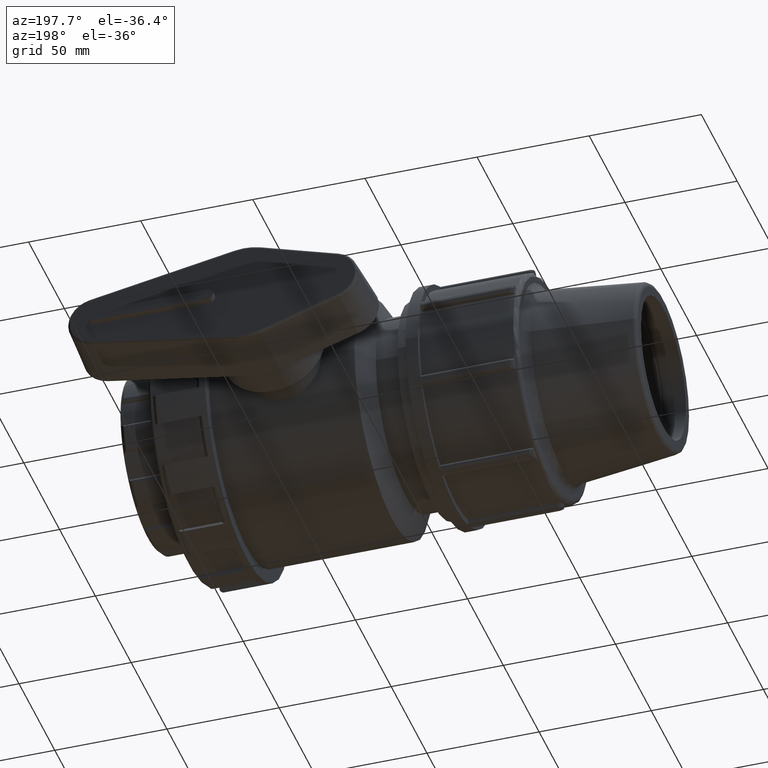
[diagram: clean part render]
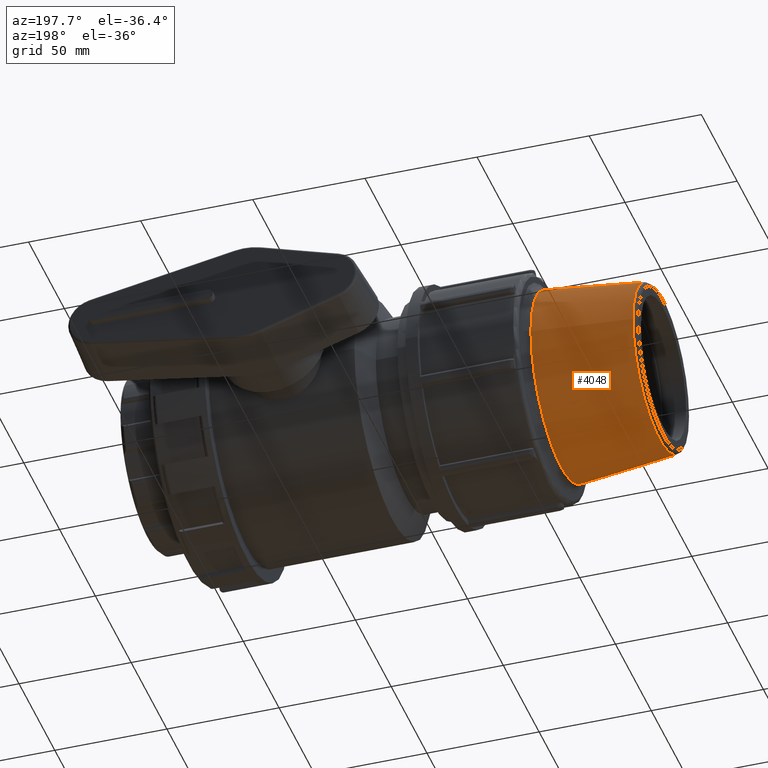
[diagram: same view with one face highlighted and labeled with its STEP entity id]
A machine part, auxiliary view. The second image highlights one B-rep face of the part: STEP entity #4048.
In plain terms, the highlighted conical surface has half-angle 6.179 deg.
Its self-contained STEP definition (entity closure, byte-faithful):
#15=CONICAL_SURFACE('',#4356,39.825,6.17860053188567);
#36=FACE_BOUND('',#679,.T.);
#428=FACE_OUTER_BOUND('',#678,.T.);
#678=EDGE_LOOP('',(#3009));
#679=EDGE_LOOP('',(#3010));
#1414=CIRCLE('',#4354,37.3525842148343);
#1416=CIRCLE('',#4357,42.1148315703314);
#1737=VERTEX_POINT('',#7091);
#1739=VERTEX_POINT('',#7096);
#2220=EDGE_CURVE('',#1737,#1737,#1414,.T.);
#2222=EDGE_CURVE('',#1739,#1739,#1416,.T.);
#3009=ORIENTED_EDGE('',*,*,#2222,.F.);
#3010=ORIENTED_EDGE('',*,*,#2220,.F.);
#4048=ADVANCED_FACE('',(#428,#36),#15,.T.);
#4354=AXIS2_PLACEMENT_3D('',#7092,#5045,#5046);
#4356=AXIS2_PLACEMENT_3D('',#7095,#5049,#5050);
#4357=AXIS2_PLACEMENT_3D('',#7097,#5051,#5052);
#5045=DIRECTION('center_axis',(-1.,0.,0.));
#5046=DIRECTION('ref_axis',(0.,-1.,-3.06161699786838E-17));
#5049=DIRECTION('center_axis',(1.,0.,0.));
#5050=DIRECTION('ref_axis',(0.,1.,0.));
#5051=DIRECTION('center_axis',(1.,0.,0.));
#5052=DIRECTION('ref_axis',(0.,-1.,-3.06161699786838E-17));
#7091=CARTESIAN_POINT('',(-151.646750331898,37.3525842148343,2.28718613492894E-15));
#7092=CARTESIAN_POINT('Origin',(-151.646750331898,0.,5.71796533732235E-15));
#7095=CARTESIAN_POINT('Origin',(-128.808333333333,0.,0.));
#7096=CARTESIAN_POINT('',(-107.656499336204,42.1148315703314,1.28939484198091E-14));
#7097=CARTESIAN_POINT('Origin',(-107.656499336204,0.,6.44697420990453E-15));